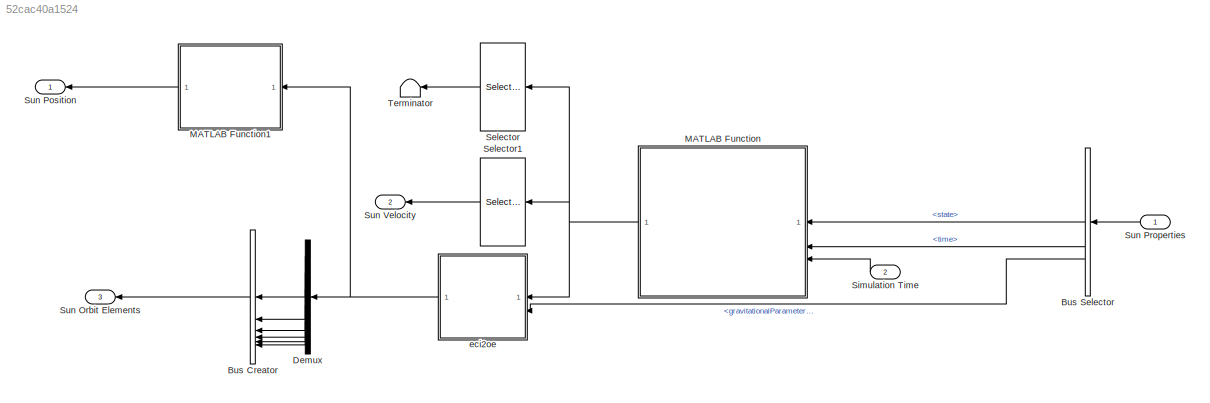
MODEL slx_52cac40a1524
KIND model
CONFIG AbsTol = auto
CONFIG EnableMultiTasking = off
CONFIG FixedStep = dt_sun
CONFIG MaxStep = auto
CONFIG MinStep = auto
CONFIG RelTol = 1e-3
CONFIG SampleTimeConstraint = Unconstrained
CONFIG SolverName = ode4
CONFIG StartTime = 0.0
CONFIG StopTime = 10.0
BLOCK [BusCreator] Bus Creator
  DisplayOption = bar
  InheritFromInputs = off
  Inputs = 6
  NonVirtualBus = on
  OutDataTypeStr = Bus: osculatingOrbitElements
BLOCK [BusSelector] Bus Selector
  OutputSignals = state,time,gravitationalParameter_m3_s2
BLOCK [Demux] Demux
  Outputs = 6
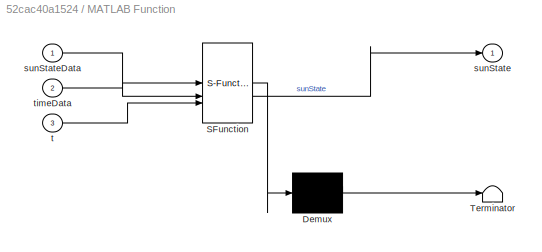
BLOCK [SubSystem] MATLAB Function
  ErrorFcn = Stateflow.Translate.translate
  LibrarySourceBlock = simulink/User-Defined\nFunctions/MATLAB Function
  PermitHierarchicalResolution = ExplicitOnly
  SFBlockType = MATLAB Function
  TreatAsAtomicUnit = on
BLOCK [Demux] MATLAB Function/ Demux 
  Outputs = 1
BLOCK [S-Function] MATLAB Function/ SFunction 
  EnableBusSupport = on
  FunctionName = sf_sfun
  PortCounts = [3 2]
  SFcnIsStateOwnerBlock = off
  SFunctionDeploymentMode = off
  Tag = Stateflow S-Function 2
BLOCK [Terminator] MATLAB Function/ Terminator 
BLOCK [Outport] MATLAB Function/sunState
BLOCK [Inport] MATLAB Function/sunStateData
BLOCK [Inport] MATLAB Function/t
  Port = 3
BLOCK [Inport] MATLAB Function/timeData
  Port = 2
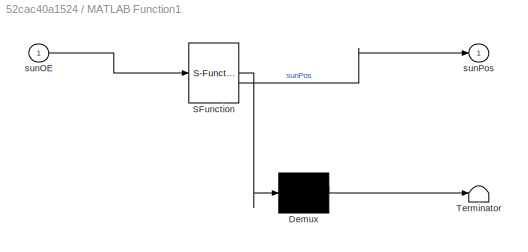
BLOCK [SubSystem] MATLAB Function1
  ErrorFcn = Stateflow.Translate.translate
  LibrarySourceBlock = simulink/User-Defined\nFunctions/MATLAB Function
  PermitHierarchicalResolution = ExplicitOnly
  SFBlockType = MATLAB Function
  TreatAsAtomicUnit = on
BLOCK [Demux] MATLAB Function1/ Demux 
  Outputs = 1
BLOCK [S-Function] MATLAB Function1/ SFunction 
  EnableBusSupport = on
  FunctionName = sf_sfun
  PortCounts = [1 2]
  SFcnIsStateOwnerBlock = off
  SFunctionDeploymentMode = off
  Tag = Stateflow S-Function 1
BLOCK [Terminator] MATLAB Function1/ Terminator 
BLOCK [Inport] MATLAB Function1/sunOE
BLOCK [Outport] MATLAB Function1/sunPos
BLOCK [Selector] Selector
  IndexOptions = Index vector (dialog)
  Indices = [1:3]
  InputPortWidth = 6
  OutputSizes = 1
BLOCK [Selector] Selector1
  IndexOptions = Index vector (dialog)
  Indices = [4:6]
  InputPortWidth = 6
  OutputSizes = 1
BLOCK [Inport] Simulation Time
  Port = 2
BLOCK [Outport] Sun Orbit Elements
  OutDataTypeStr = Bus: osculatingOrbitElements
  Port = 3
BLOCK [Outport] Sun Position
BLOCK [Inport] Sun Properties
  OutDataTypeStr = Bus: sunProperties
BLOCK [Outport] Sun Velocity
  Port = 2
BLOCK [Terminator] Terminator
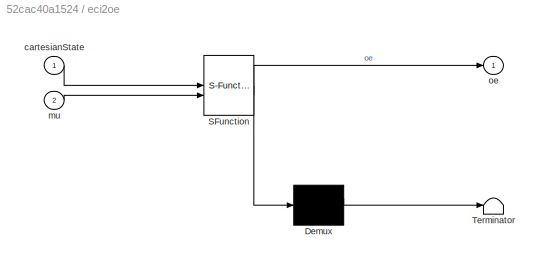
BLOCK [SubSystem] eci2oe
  ErrorFcn = Stateflow.Translate.translate
  LibrarySourceBlock = simulink/User-Defined\nFunctions/MATLAB Function
  PermitHierarchicalResolution = ExplicitOnly
  SFBlockType = MATLAB Function
  TreatAsAtomicUnit = on
BLOCK [Demux] eci2oe/ Demux 
  Outputs = 1
BLOCK [S-Function] eci2oe/ SFunction 
  EnableBusSupport = on
  FunctionName = sf_sfun
  PortCounts = [2 2]
  SFcnIsStateOwnerBlock = off
  SFunctionDeploymentMode = off
  Tag = Stateflow S-Function 3
BLOCK [Terminator] eci2oe/ Terminator 
BLOCK [Inport] eci2oe/cartesianState
BLOCK [Inport] eci2oe/mu
  Port = 2
BLOCK [Outport] eci2oe/oe
LINE Bus Creator:1 -> Sun Orbit Elements:1
LINE Bus Selector:1 -> MATLAB Function:1
LINE Bus Selector:2 -> MATLAB Function:2
LINE Bus Selector:3 -> eci2oe:2
LINE Demux:1 -> Bus Creator:1
LINE Demux:2 -> Bus Creator:2
LINE Demux:3 -> Bus Creator:3
LINE Demux:4 -> Bus Creator:4
LINE Demux:5 -> Bus Creator:5
LINE Demux:6 -> Bus Creator:6
LINE MATLAB Function1:1 -> Sun Position:1
NET MATLAB Function:1 -> Selector1:1, Selector:1, eci2oe:1
LINE Selector1:1 -> Sun Velocity:1
LINE Selector:1 -> Terminator:1
LINE Simulation Time:1 -> MATLAB Function:3
LINE Sun Properties:1 -> Bus Selector:1
NET eci2oe:1 -> Demux:1, MATLAB Function1:1
note: NET lines group one-source signal fan-out (src -> all destinations, sorted); 1:1 wires keep LINE
CHART MATLAB Function states=1 transitions=1
  STATE_LABEL 'eML_blk_kernel()'
  STATE_LABEL 'SCRIPT:\nfunction sunState = getSunState(sunStateData,timeData,t)\n\nsunState = getSunState(sunStateData,timeData,t);\n\nend\n'
CHART eci2oe states=1 transitions=1
  STATE_LABEL 'eML_blk_kernel()'
  STATE_LABEL 'SCRIPT:\nfunction oe = eci2oe(cartesianState,mu)\n[oe,~,~,~] = eci2oe( cartesianState , mu );\nend\n'
CHART MATLAB Function1 states=1 transitions=1
  STATE_LABEL 'eML_blk_kernel()'
  STATE_LABEL 'SCRIPT:\nfunction sunPos = sunOE_to_sunPos(sunOE)\nsunPos = sunOE_to_sunPos(sunOE);\nend'
CHART  states=0 transitions=0
CHART  states=0 transitions=0
CHART  states=0 transitions=0
